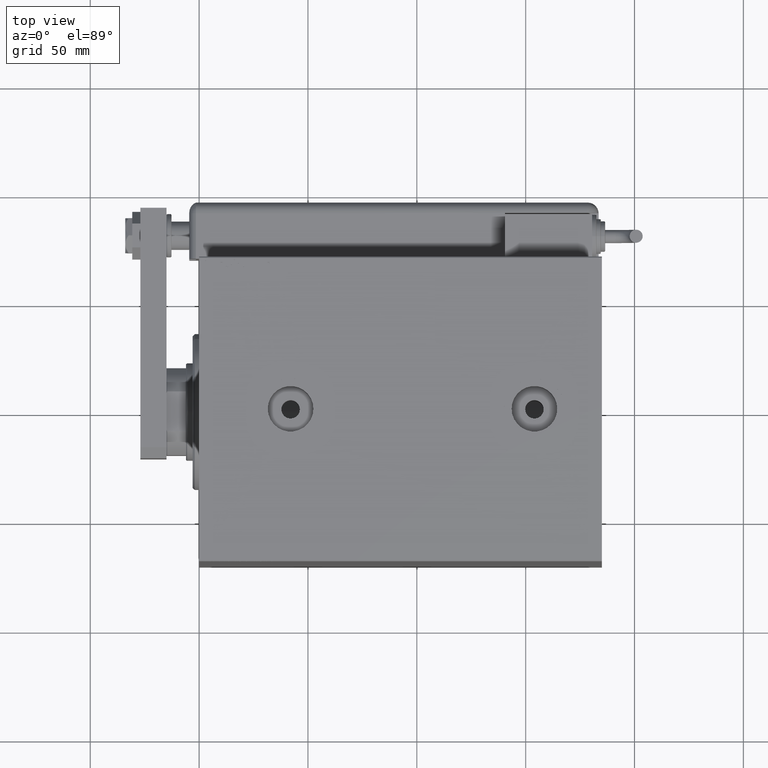
[diagram: clean part render]
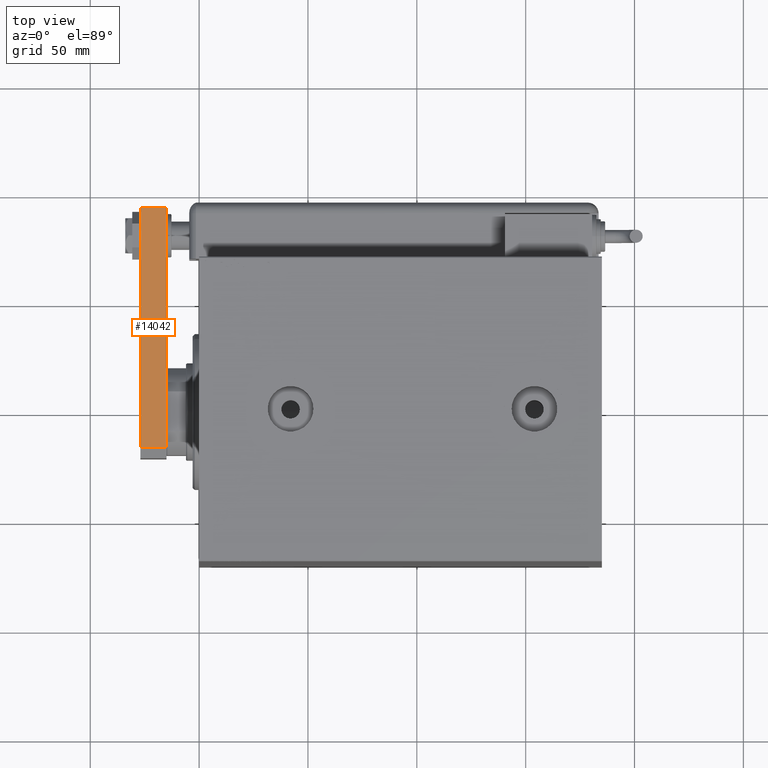
[diagram: same view with one face highlighted and labeled with its STEP entity id]
A machine part, top view. The second image highlights one B-rep face of the part: STEP entity #14042.
In plain terms, the highlighted planar face has unit normal (-0, -0, -1).
Its self-contained STEP definition (entity closure, byte-faithful):
#3640 = FACE_OUTER_BOUND ( 'NONE', #59507, .T. ) ;
#5095 = DIRECTION ( 'NONE',  ( -6.033820786006285224E-17, -1.000000000000000000, 0.000000000000000000 ) ) ;
#5695 = CARTESIAN_POINT ( 'NONE',  ( -22.50000000000000355, 115.0000000000000000, 0.000000000000000000 ) ) ;
#7026 = LINE ( 'NONE', #29759, #21803 ) ;
#13015 = CARTESIAN_POINT ( 'NONE',  ( -22.50000000000000355, 115.0000000000000000, 12.00000000000000000 ) ) ;
#14042 = ADVANCED_FACE ( 'NONE', ( #3640 ), #16964, .F. ) ;
#16238 = ORIENTED_EDGE ( 'NONE', *, *, #45536, .T. ) ;
#16703 = VERTEX_POINT ( 'NONE', #31445 ) ;
#16789 = VECTOR ( 'NONE', #5095, 1000.000000000000000 ) ;
#16964 = PLANE ( 'NONE',  #27938 ) ;
#17262 = VECTOR ( 'NONE', #54066, 1000.000000000000000 ) ;
#17776 = VERTEX_POINT ( 'NONE', #18011 ) ;
#17849 = DIRECTION ( 'NONE',  ( 6.033820786006285224E-17, 1.000000000000000000, 0.000000000000000000 ) ) ;
#18011 = CARTESIAN_POINT ( 'NONE',  ( -22.50000000000001066, 5.000000000000031974, 12.00000000000000000 ) ) ;
#19349 = CARTESIAN_POINT ( 'NONE',  ( -22.50000000000000355, 115.0000000000000000, 0.000000000000000000 ) ) ;
#20478 = CARTESIAN_POINT ( 'NONE',  ( -22.50000000000001066, 5.000000000000031974, 0.000000000000000000 ) ) ;
#21803 = VECTOR ( 'NONE', #52766, 1000.000000000000000 ) ;
#22994 = LINE ( 'NONE', #19349, #16789 ) ;
#27938 = AXIS2_PLACEMENT_3D ( 'NONE', #13015, #44529, #17849 ) ;
#29759 = CARTESIAN_POINT ( 'NONE',  ( -22.50000000000000355, 115.0000000000000000, 12.00000000000000000 ) ) ;
#30508 = LINE ( 'NONE', #45044, #51244 ) ;
#31223 = ORIENTED_EDGE ( 'NONE', *, *, #58460, .F. ) ;
#31445 = CARTESIAN_POINT ( 'NONE',  ( -22.50000000000000355, 115.0000000000000000, 12.00000000000000000 ) ) ;
#41511 = EDGE_CURVE ( 'NONE', #52354, #17776, #57730, .T. ) ;
#43507 = ORIENTED_EDGE ( 'NONE', *, *, #49677, .T. ) ;
#44529 = DIRECTION ( 'NONE',  ( 1.000000000000000000, -6.033820786006285224E-17, 0.000000000000000000 ) ) ;
#45044 = CARTESIAN_POINT ( 'NONE',  ( -22.50000000000000355, 115.0000000000000000, 12.00000000000000000 ) ) ;
#45536 = EDGE_CURVE ( 'NONE', #16703, #47628, #30508, .T. ) ;
#47628 = VERTEX_POINT ( 'NONE', #5695 ) ;
#48993 = DIRECTION ( 'NONE',  ( -0.000000000000000000, -0.000000000000000000, -1.000000000000000000 ) ) ;
#49677 = EDGE_CURVE ( 'NONE', #47628, #52354, #22994, .T. ) ;
#51244 = VECTOR ( 'NONE', #48993, 1000.000000000000000 ) ;
#52354 = VERTEX_POINT ( 'NONE', #20478 ) ;
#52766 = DIRECTION ( 'NONE',  ( -6.033820786006285224E-17, -1.000000000000000000, 0.000000000000000000 ) ) ;
#54008 = ORIENTED_EDGE ( 'NONE', *, *, #41511, .T. ) ;
#54066 = DIRECTION ( 'NONE',  ( 0.000000000000000000, 0.000000000000000000, 1.000000000000000000 ) ) ;
#57730 = LINE ( 'NONE', #58023, #17262 ) ;
#58023 = CARTESIAN_POINT ( 'NONE',  ( -22.50000000000001066, 5.000000000000031974, 12.00000000000000000 ) ) ;
#58460 = EDGE_CURVE ( 'NONE', #16703, #17776, #7026, .T. ) ;
#59507 = EDGE_LOOP ( 'NONE', ( #43507, #54008, #31223, #16238 ) ) ;